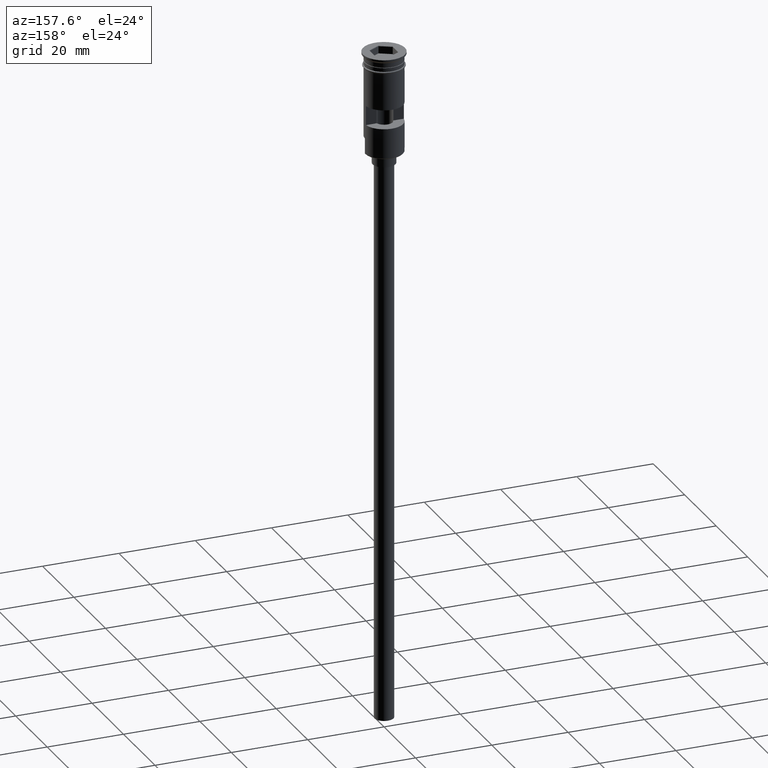
[diagram: clean part render]
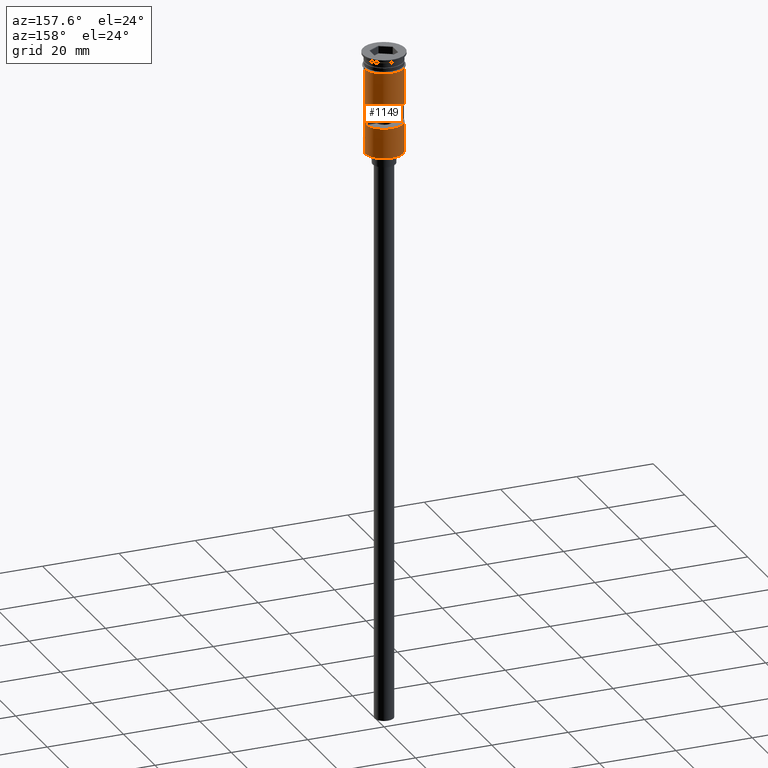
[diagram: same view with one face highlighted and labeled with its STEP entity id]
A machine part, auxiliary view. The second image highlights one B-rep face of the part: STEP entity #1149.
In plain terms, the highlighted cylindrical surface (edge-blend (fillet) strip) has radius 5 mm, axis along (-0, -0, 1).
Its self-contained STEP definition (entity closure, byte-faithful):
#3 = VERTEX_POINT ( 'NONE', #1272 ) ;
#13 = CARTESIAN_POINT ( 'NONE',  ( -4.999999999999999112, 6.123233995736765296E-16, -3.799999999999998934 ) ) ;
#16 = ORIENTED_EDGE ( 'NONE', *, *, #1507, .F. ) ;
#29 = DIRECTION ( 'NONE',  ( -0.000000000000000000, -3.942553354492746489E-16, -1.000000000000000000 ) ) ;
#50 = AXIS2_PLACEMENT_3D ( 'NONE', #1118, #29, #1479 ) ;
#76 = ORIENTED_EDGE ( 'NONE', *, *, #1568, .F. ) ;
#77 = FACE_BOUND ( 'NONE', #1311, .T. ) ;
#123 = CARTESIAN_POINT ( 'NONE',  ( 4.999999999999993783, 6.123233995736758394E-16, -26.50000000000000000 ) ) ;
#188 = CARTESIAN_POINT ( 'NONE',  ( -4.999999999999996447, 6.123233995736762338E-16, 0.000000000000000000 ) ) ;
#216 = ORIENTED_EDGE ( 'NONE', *, *, #1380, .F. ) ;
#241 = DIRECTION ( 'NONE',  ( -0.000000000000000000, -0.000000000000000000, 1.000000000000000000 ) ) ;
#256 = EDGE_CURVE ( 'NONE', #282, #3, #361, .T. ) ;
#282 = VERTEX_POINT ( 'NONE', #1604 ) ;
#292 = VERTEX_POINT ( 'NONE', #1204 ) ;
#299 = ORIENTED_EDGE ( 'NONE', *, *, #658, .T. ) ;
#310 = VECTOR ( 'NONE', #1369, 1000.000000000000000 ) ;
#317 = DIRECTION ( 'NONE',  ( 0.000000000000000000, 0.000000000000000000, 1.000000000000000000 ) ) ;
#327 = DIRECTION ( 'NONE',  ( 1.000000000000000000, 0.000000000000000000, 0.000000000000000000 ) ) ;
#361 = CIRCLE ( 'NONE', #1366, 4.999999999999996447 ) ;
#370 = VERTEX_POINT ( 'NONE', #1196 ) ;
#403 = CARTESIAN_POINT ( 'NONE',  ( -4.963869458396339418, 0.5999999999999998668, 0.000000000000000000 ) ) ;
#475 = CARTESIAN_POINT ( 'NONE',  ( 0.000000000000000000, 0.000000000000000000, -18.50000000000000355 ) ) ;
#536 = VERTEX_POINT ( 'NONE', #633 ) ;
#569 = CARTESIAN_POINT ( 'NONE',  ( -4.963869458396339418, 0.5999999999999998668, -18.50000000000000355 ) ) ;
#574 = CARTESIAN_POINT ( 'NONE',  ( 0.000000000000000000, 0.000000000000000000, 0.000000000000000000 ) ) ;
#605 = CARTESIAN_POINT ( 'NONE',  ( -4.999999999999993783, 0.000000000000000000, -26.50000000000000000 ) ) ;
#619 = AXIS2_PLACEMENT_3D ( 'NONE', #1456, #241, #979 ) ;
#633 = CARTESIAN_POINT ( 'NONE',  ( 4.963869458396339418, 0.5999999999999998668, -13.49999999999999822 ) ) ;
#654 = ORIENTED_EDGE ( 'NONE', *, *, #718, .T. ) ;
#658 = EDGE_CURVE ( 'NONE', #292, #1372, #681, .T. ) ;
#675 = DIRECTION ( 'NONE',  ( -0.000000000000000000, -0.000000000000000000, 1.000000000000000000 ) ) ;
#678 = LINE ( 'NONE', #403, #1342 ) ;
#681 = LINE ( 'NONE', #188, #1281 ) ;
#683 = DIRECTION ( 'NONE',  ( -1.000000000000000000, 0.000000000000000000, 0.000000000000000000 ) ) ;
#695 = AXIS2_PLACEMENT_3D ( 'NONE', #574, #971, #327 ) ;
#718 = EDGE_CURVE ( 'NONE', #3, #292, #1336, .T. ) ;
#720 = VECTOR ( 'NONE', #1328, 1000.000000000000000 ) ;
#731 = EDGE_CURVE ( 'NONE', #370, #1372, #1390, .T. ) ;
#737 = EDGE_LOOP ( 'NONE', ( #654, #299, #1348, #76, #216, #1291 ) ) ;
#751 = CIRCLE ( 'NONE', #50, 4.999999999999996447 ) ;
#820 = CARTESIAN_POINT ( 'NONE',  ( 4.963869458396339418, 0.5999999999999998668, -18.50000000000000355 ) ) ;
#829 = AXIS2_PLACEMENT_3D ( 'NONE', #475, #1172, #683 ) ;
#915 = ORIENTED_EDGE ( 'NONE', *, *, #1601, .F. ) ;
#923 = CARTESIAN_POINT ( 'NONE',  ( 4.999999999999996447, 0.000000000000000000, 0.000000000000000000 ) ) ;
#925 = VERTEX_POINT ( 'NONE', #1354 ) ;
#971 = DIRECTION ( 'NONE',  ( -0.000000000000000000, -0.000000000000000000, 1.000000000000000000 ) ) ;
#979 = DIRECTION ( 'NONE',  ( 1.000000000000000000, 0.000000000000000000, 0.000000000000000000 ) ) ;
#1038 = DIRECTION ( 'NONE',  ( -1.000000000000000000, 0.000000000000000000, 0.000000000000000000 ) ) ;
#1044 = LINE ( 'NONE', #923, #1524 ) ;
#1051 = CARTESIAN_POINT ( 'NONE',  ( 0.000000000000000000, 0.000000000000000000, -26.30000000000000071 ) ) ;
#1065 = FACE_OUTER_BOUND ( 'NONE', #737, .T. ) ;
#1118 = CARTESIAN_POINT ( 'NONE',  ( 0.000000000000000000, 0.000000000000000000, -13.49999999999999822 ) ) ;
#1149 = ADVANCED_FACE ( 'NONE', ( #77, #1065 ), #1199, .T. ) ;
#1150 = VERTEX_POINT ( 'NONE', #820 ) ;
#1172 = DIRECTION ( 'NONE',  ( 0.000000000000000000, 0.000000000000000000, 1.000000000000000000 ) ) ;
#1196 = CARTESIAN_POINT ( 'NONE',  ( 4.999999999999999112, 0.000000000000000000, -3.799999999999998934 ) ) ;
#1197 = DIRECTION ( 'NONE',  ( -0.000000000000000000, -0.000000000000000000, 1.000000000000000000 ) ) ;
#1199 = CYLINDRICAL_SURFACE ( 'NONE', #695, 4.999999999999996447 ) ;
#1204 = CARTESIAN_POINT ( 'NONE',  ( -4.999999999999993783, 0.000000000000000000, -22.30000000000001137 ) ) ;
#1206 = VECTOR ( 'NONE', #1544, 1000.000000000000000 ) ;
#1272 = CARTESIAN_POINT ( 'NONE',  ( -4.999999999999993783, 0.000000000000000000, -26.30000000000000071 ) ) ;
#1281 = VECTOR ( 'NONE', #675, 1000.000000000000000 ) ;
#1291 = ORIENTED_EDGE ( 'NONE', *, *, #256, .T. ) ;
#1311 = EDGE_LOOP ( 'NONE', ( #1505, #1453, #16, #915 ) ) ;
#1328 = DIRECTION ( 'NONE',  ( -0.000000000000000000, -0.000000000000000000, 1.000000000000000000 ) ) ;
#1329 = EDGE_CURVE ( 'NONE', #1459, #536, #751, .T. ) ;
#1336 = LINE ( 'NONE', #605, #720 ) ;
#1342 = VECTOR ( 'NONE', #1399, 1000.000000000000000 ) ;
#1344 = CIRCLE ( 'NONE', #829, 4.999999999999996447 ) ;
#1348 = ORIENTED_EDGE ( 'NONE', *, *, #731, .F. ) ;
#1354 = CARTESIAN_POINT ( 'NONE',  ( 4.999999999999996447, 6.123233995736761352E-16, -22.30000000000001137 ) ) ;
#1359 = LINE ( 'NONE', #123, #310 ) ;
#1366 = AXIS2_PLACEMENT_3D ( 'NONE', #1051, #317, #1038 ) ;
#1369 = DIRECTION ( 'NONE',  ( -0.000000000000000000, -0.000000000000000000, 1.000000000000000000 ) ) ;
#1372 = VERTEX_POINT ( 'NONE', #13 ) ;
#1380 = EDGE_CURVE ( 'NONE', #282, #925, #1359, .T. ) ;
#1390 = CIRCLE ( 'NONE', #619, 4.999999999999999112 ) ;
#1399 = DIRECTION ( 'NONE',  ( -0.000000000000000000, -0.000000000000000000, 1.000000000000000000 ) ) ;
#1409 = LINE ( 'NONE', #1513, #1206 ) ;
#1435 = EDGE_CURVE ( 'NONE', #536, #1150, #1409, .T. ) ;
#1453 = ORIENTED_EDGE ( 'NONE', *, *, #1329, .F. ) ;
#1456 = CARTESIAN_POINT ( 'NONE',  ( 0.000000000000000000, 0.000000000000000000, -3.799999999999998934 ) ) ;
#1459 = VERTEX_POINT ( 'NONE', #1538 ) ;
#1479 = DIRECTION ( 'NONE',  ( 0.000000000000000000, -1.000000000000000000, 3.469446951953616654E-16 ) ) ;
#1505 = ORIENTED_EDGE ( 'NONE', *, *, #1435, .F. ) ;
#1507 = EDGE_CURVE ( 'NONE', #1602, #1459, #678, .T. ) ;
#1513 = CARTESIAN_POINT ( 'NONE',  ( 4.963869458396339418, 0.5999999999999998668, 0.000000000000000000 ) ) ;
#1524 = VECTOR ( 'NONE', #1197, 1000.000000000000000 ) ;
#1538 = CARTESIAN_POINT ( 'NONE',  ( -4.963869458396339418, 0.5999999999999998668, -13.49999999999999822 ) ) ;
#1544 = DIRECTION ( 'NONE',  ( 0.000000000000000000, 0.000000000000000000, -1.000000000000000000 ) ) ;
#1568 = EDGE_CURVE ( 'NONE', #925, #370, #1044, .T. ) ;
#1601 = EDGE_CURVE ( 'NONE', #1150, #1602, #1344, .T. ) ;
#1602 = VERTEX_POINT ( 'NONE', #569 ) ;
#1604 = CARTESIAN_POINT ( 'NONE',  ( 4.999999999999993783, 6.123233995736758394E-16, -26.30000000000000071 ) ) ;